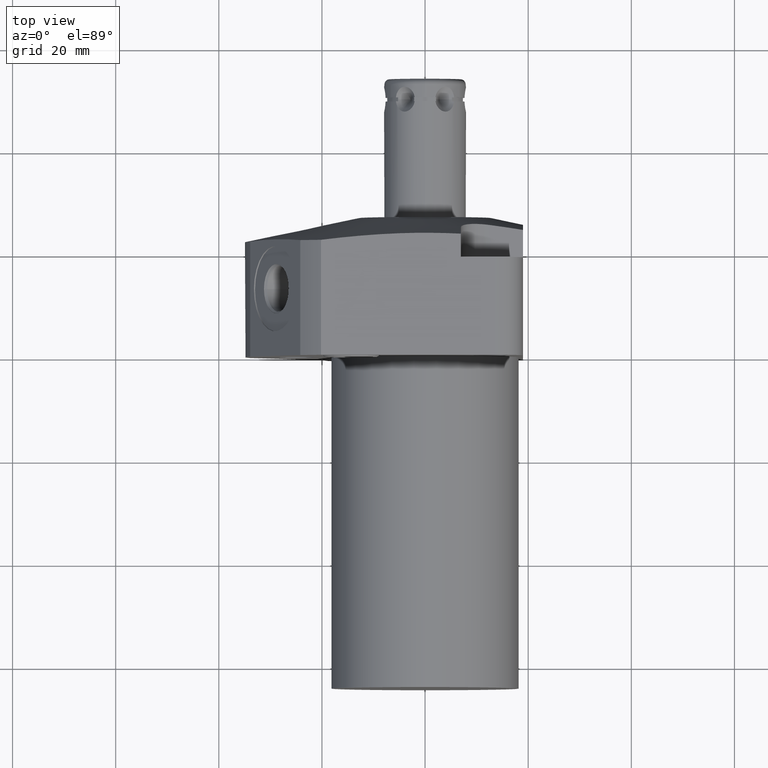
[diagram: clean part render]
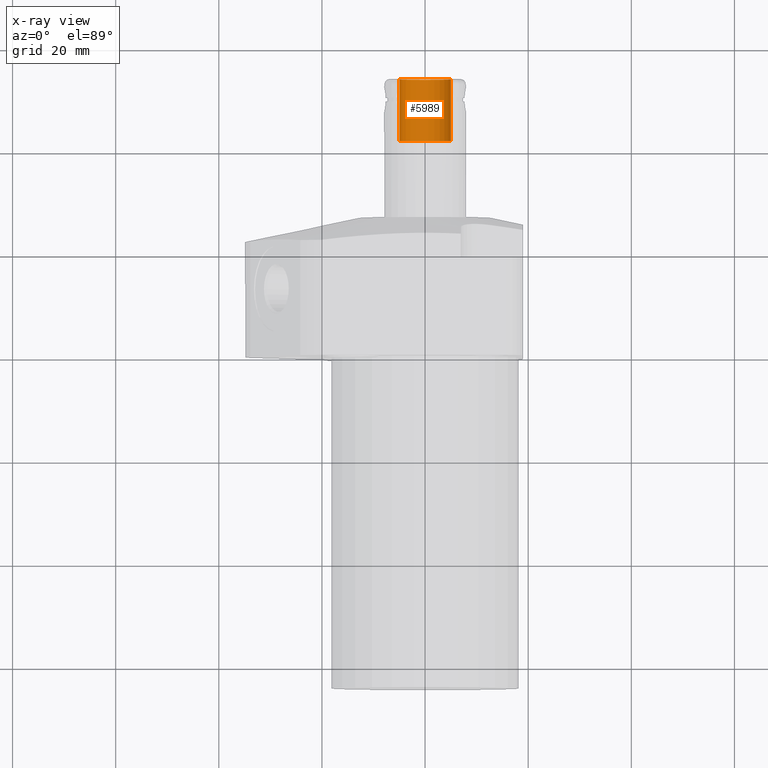
[diagram: x-ray — body ghosted, one internal face saturated and labeled with its STEP entity id]
A machine part, top view, then the same camera in x-ray: the body is ghosted and one INTERNAL B-rep face — a face not visible from any outside direction — is saturated and labeled: STEP entity #5989.
In plain terms, the highlighted cylindrical surface (edge-blend (fillet) strip) has radius 5.004 mm, axis along (0, 1, 0).
Its self-contained STEP definition (entity closure, byte-faithful):
#5900=CARTESIAN_POINT('',(0.E0,5.3912E1,0.E0));
#5901=DIRECTION('',(0.E0,1.E0,0.E0));
#5902=DIRECTION('',(1.E0,0.E0,0.E0));
#5903=AXIS2_PLACEMENT_3D('',#5900,#5901,#5902);
#5908=DIRECTION('',(0.E0,-1.E0,0.E0));
#5909=VECTOR('',#5908,1.194E1);
#5910=CARTESIAN_POINT('',(5.004E0,5.3912E1,0.E0));
#5911=LINE('',#5910,#5909);
#5923=DIRECTION('',(0.E0,-1.E0,0.E0));
#5924=VECTOR('',#5923,1.194E1);
#5925=CARTESIAN_POINT('',(-5.004E0,5.3912E1,0.E0));
#5926=LINE('',#5925,#5924);
#5938=CARTESIAN_POINT('',(0.E0,4.1972E1,0.E0));
#5939=DIRECTION('',(0.E0,1.E0,0.E0));
#5940=DIRECTION('',(1.E0,0.E0,0.E0));
#5941=AXIS2_PLACEMENT_3D('',#5938,#5939,#5940);
#5962=CARTESIAN_POINT('',(-5.004E0,5.3912E1,0.E0));
#5963=CARTESIAN_POINT('',(5.004E0,5.3912E1,0.E0));
#5964=VERTEX_POINT('',#5962);
#5965=VERTEX_POINT('',#5963);
#5966=CARTESIAN_POINT('',(-5.004E0,4.1972E1,0.E0));
#5967=CARTESIAN_POINT('',(5.004E0,4.1972E1,0.E0));
#5968=VERTEX_POINT('',#5966);
#5969=VERTEX_POINT('',#5967);
#5974=CARTESIAN_POINT('',(0.E0,5.3912E1,0.E0));
#5975=DIRECTION('',(0.E0,1.E0,0.E0));
#5976=DIRECTION('',(-1.E0,0.E0,0.E0));
#5977=AXIS2_PLACEMENT_3D('',#5974,#5975,#5976);
#5978=CYLINDRICAL_SURFACE('',#5977,5.004E0);
#5980=ORIENTED_EDGE('',*,*,#5979,.T.);
#5982=ORIENTED_EDGE('',*,*,#5981,.T.);
#5984=ORIENTED_EDGE('',*,*,#5983,.F.);
#5986=ORIENTED_EDGE('',*,*,#5985,.F.);
#5987=EDGE_LOOP('',(#5980,#5982,#5984,#5986));
#5988=FACE_OUTER_BOUND('',#5987,.F.);
#5989=ADVANCED_FACE('',(#5988),#5978,.T.);
#5904=CIRCLE('',#5903,5.004E0);
#5942=CIRCLE('',#5941,5.004E0);
#5979=EDGE_CURVE('',#5965,#5964,#5904,.T.);
#5981=EDGE_CURVE('',#5964,#5968,#5926,.T.);
#5983=EDGE_CURVE('',#5969,#5968,#5942,.T.);
#5985=EDGE_CURVE('',#5965,#5969,#5911,.T.);